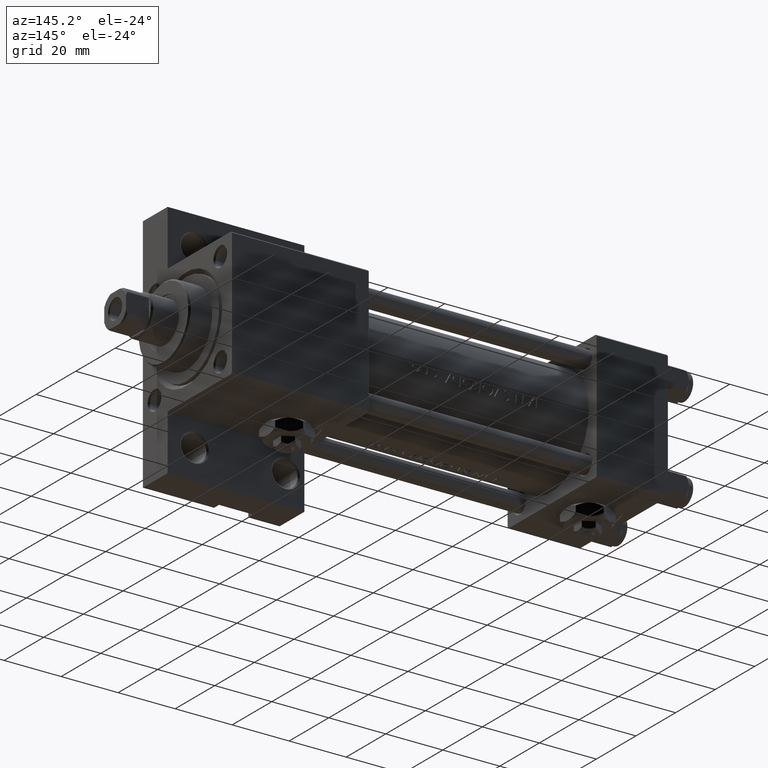
[diagram: clean part render]
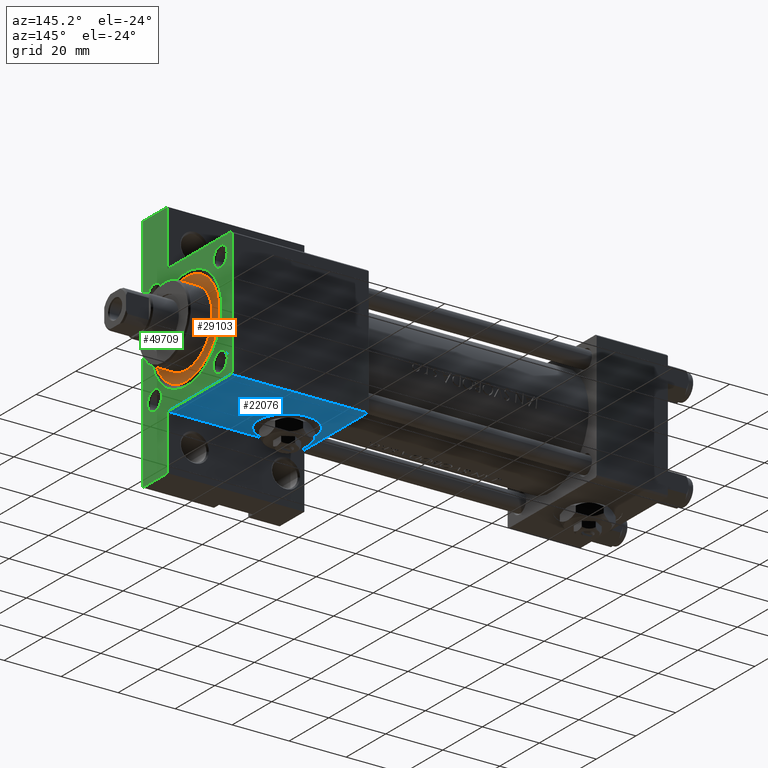
[diagram: same view with three faces highlighted in distinct colors, each labeled with its STEP entity id]
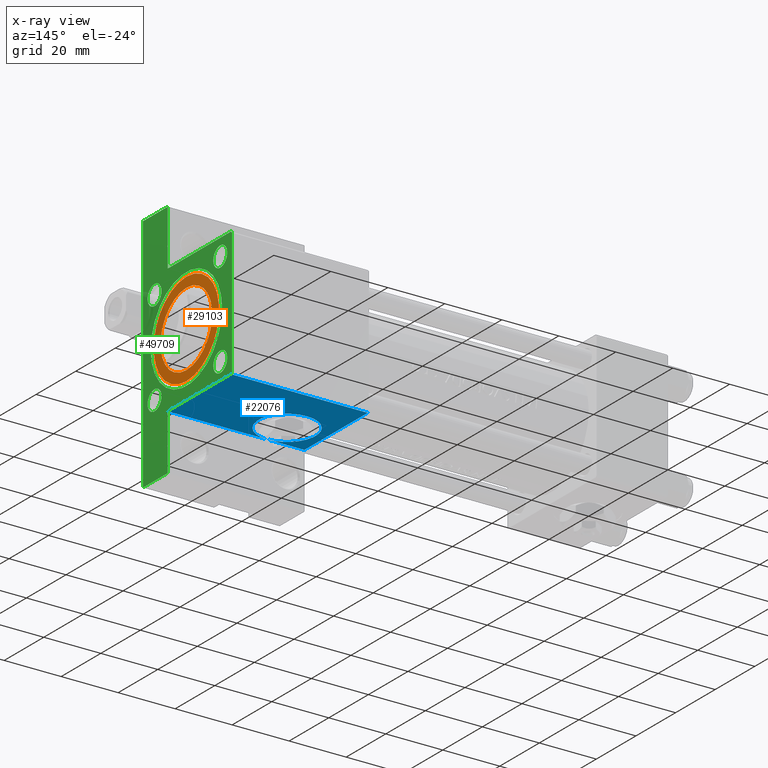
[diagram: x-ray of the same camera — body ghosted, the three highlighted faces saturated]
A machine part, auxiliary view with three faces highlighted in distinct colors.
The next image is the same camera in x-ray (body ghosted, the three faces saturated) — at least one of them is partly hidden behind the body in this view.
Their STEP definitions:

[orange] entity #29103 — the highlighted planar face has unit normal (1, 0, 0).
#1811 = CARTESIAN_POINT ( 'NONE',  ( 0.000000000000000000, 0.000000000000000000, 28.69999999999999929 ) ) ;
#1922 = EDGE_CURVE ( 'NONE', #48333, #40470, #46115, .T. ) ;
#2760 = CARTESIAN_POINT ( 'NONE',  ( 0.000000000000000000, 0.000000000000000000, 28.69999999999999929 ) ) ;
#6560 = DIRECTION ( 'NONE',  ( 0.000000000000000000, 0.000000000000000000, 1.000000000000000000 ) ) ;
#6644 = CIRCLE ( 'NONE', #30756, 13.00000000000000178 ) ;
#7551 = AXIS2_PLACEMENT_3D ( 'NONE', #1811, #6560, #37254 ) ;
#7639 = ORIENTED_EDGE ( 'NONE', *, *, #1922, .T. ) ;
#9574 = FACE_OUTER_BOUND ( 'NONE', #19004, .T. ) ;
#10303 = FACE_BOUND ( 'NONE', #33763, .T. ) ;
#11593 = CARTESIAN_POINT ( 'NONE',  ( 0.000000000000000000, 0.000000000000000000, 28.69999999999999929 ) ) ;
#13199 = DIRECTION ( 'NONE',  ( 0.000000000000000000, 0.000000000000000000, 1.000000000000000000 ) ) ;
#14281 = CARTESIAN_POINT ( 'NONE',  ( 13.00000000000000178, 1.592040838891559293E-15, 28.69999999999999929 ) ) ;
#14694 = CIRCLE ( 'NONE', #32348, 16.50000000000000000 ) ;
#16633 = VERTEX_POINT ( 'NONE', #14281 ) ;
#17826 = PLANE ( 'NONE',  #43364 ) ;
#18078 = DIRECTION ( 'NONE',  ( 1.000000000000000000, 0.000000000000000000, -0.000000000000000000 ) ) ;
#19004 = EDGE_LOOP ( 'NONE', ( #7639, #34308 ) ) ;
#20249 = ORIENTED_EDGE ( 'NONE', *, *, #22564, .F. ) ;
#20943 = DIRECTION ( 'NONE',  ( 0.000000000000000000, 0.000000000000000000, 1.000000000000000000 ) ) ;
#22564 = EDGE_CURVE ( 'NONE', #32671, #16633, #6644, .T. ) ;
#28023 = DIRECTION ( 'NONE',  ( 1.000000000000000000, 0.000000000000000000, 0.000000000000000000 ) ) ;
#28076 = DIRECTION ( 'NONE',  ( 0.000000000000000000, 0.000000000000000000, 1.000000000000000000 ) ) ;
#29103 = ADVANCED_FACE ( 'NONE', ( #10303, #9574 ), #17826, .T. ) ;
#29804 = CIRCLE ( 'NONE', #36248, 13.00000000000000178 ) ;
#30756 = AXIS2_PLACEMENT_3D ( 'NONE', #2760, #20943, #32498 ) ;
#31133 = CARTESIAN_POINT ( 'NONE',  ( 16.50000000000000000, 2.020667218593133100E-15, 28.69999999999999929 ) ) ;
#32252 = EDGE_CURVE ( 'NONE', #16633, #32671, #29804, .T. ) ;
#32348 = AXIS2_PLACEMENT_3D ( 'NONE', #11593, #28076, #36137 ) ;
#32498 = DIRECTION ( 'NONE',  ( 1.000000000000000000, 0.000000000000000000, 0.000000000000000000 ) ) ;
#32671 = VERTEX_POINT ( 'NONE', #45260 ) ;
#33058 = CARTESIAN_POINT ( 'NONE',  ( -16.50000000000000000, 0.000000000000000000, 28.69999999999999929 ) ) ;
#33176 = CARTESIAN_POINT ( 'NONE',  ( 0.000000000000000000, 0.000000000000000000, 28.69999999999999929 ) ) ;
#33763 = EDGE_LOOP ( 'NONE', ( #20249, #37446 ) ) ;
#34308 = ORIENTED_EDGE ( 'NONE', *, *, #39925, .T. ) ;
#35842 = CARTESIAN_POINT ( 'NONE',  ( 0.000000000000000000, 0.000000000000000000, 28.69999999999999929 ) ) ;
#36137 = DIRECTION ( 'NONE',  ( 1.000000000000000000, 0.000000000000000000, 0.000000000000000000 ) ) ;
#36248 = AXIS2_PLACEMENT_3D ( 'NONE', #35842, #13199, #28023 ) ;
#37220 = DIRECTION ( 'NONE',  ( 0.000000000000000000, 0.000000000000000000, 1.000000000000000000 ) ) ;
#37254 = DIRECTION ( 'NONE',  ( 1.000000000000000000, 0.000000000000000000, 0.000000000000000000 ) ) ;
#37446 = ORIENTED_EDGE ( 'NONE', *, *, #32252, .F. ) ;
#39925 = EDGE_CURVE ( 'NONE', #40470, #48333, #14694, .T. ) ;
#40470 = VERTEX_POINT ( 'NONE', #31133 ) ;
#43364 = AXIS2_PLACEMENT_3D ( 'NONE', #33176, #37220, #18078 ) ;
#45260 = CARTESIAN_POINT ( 'NONE',  ( -13.00000000000000178, 0.000000000000000000, 28.69999999999999929 ) ) ;
#46115 = CIRCLE ( 'NONE', #7551, 16.50000000000000000 ) ;
#48333 = VERTEX_POINT ( 'NONE', #33058 ) ;

[blue] entity #22076 — the highlighted planar face has unit normal (0, 0, -1).
#2626 = VECTOR ( 'NONE', #49698, 1000.000000000000000 ) ;
#2941 = DIRECTION ( 'NONE',  ( -0.000000000000000000, 1.000000000000000000, 0.000000000000000000 ) ) ;
#3056 = CIRCLE ( 'NONE', #21496, 9.999999999999994671 ) ;
#4027 = CARTESIAN_POINT ( 'NONE',  ( 153.0000000000000284, 22.50000000000000355, 22.00000000000000355 ) ) ;
#5958 = CARTESIAN_POINT ( 'NONE',  ( 118.0000000000000142, 22.50000000000000355, 9.999999999999994671 ) ) ;
#6108 = AXIS2_PLACEMENT_3D ( 'NONE', #49228, #18281, #10756 ) ;
#7456 = LINE ( 'NONE', #41424, #2626 ) ;
#8136 = CARTESIAN_POINT ( 'NONE',  ( 153.0000000000000284, 22.50000000000000355, 22.50000000000000355 ) ) ;
#8373 = DIRECTION ( 'NONE',  ( 0.000000000000000000, 1.000000000000000000, 0.000000000000000000 ) ) ;
#9372 = LINE ( 'NONE', #24683, #33137 ) ;
#9622 = LINE ( 'NONE', #33227, #38804 ) ;
#9714 = CARTESIAN_POINT ( 'NONE',  ( 153.0000000000000284, 22.50000000000000355, 22.00000000000000355 ) ) ;
#10108 = EDGE_CURVE ( 'NONE', #17993, #45819, #12650, .T. ) ;
#10115 = DIRECTION ( 'NONE',  ( 0.000000000000000000, 0.000000000000000000, -1.000000000000000000 ) ) ;
#10756 = DIRECTION ( 'NONE',  ( 0.000000000000000000, 0.000000000000000000, 1.000000000000000000 ) ) ;
#11285 = VERTEX_POINT ( 'NONE', #26506 ) ;
#11482 = DIRECTION ( 'NONE',  ( 0.000000000000000000, -0.000000000000000000, 1.000000000000000000 ) ) ;
#11872 = EDGE_CURVE ( 'NONE', #23829, #31406, #46030, .T. ) ;
#12650 = CIRCLE ( 'NONE', #6108, 9.999999999999994671 ) ;
#13385 = VECTOR ( 'NONE', #23869, 1000.000000000000000 ) ;
#14175 = ORIENTED_EDGE ( 'NONE', *, *, #14496, .F. ) ;
#14496 = EDGE_CURVE ( 'NONE', #45819, #17993, #3056, .T. ) ;
#17179 = CARTESIAN_POINT ( 'NONE',  ( 105.0000000000000142, 22.50000000000000355, -9.999999999999984013 ) ) ;
#17486 = CARTESIAN_POINT ( 'NONE',  ( 105.0000000000000142, 22.50000000000000355, 22.00000000000000355 ) ) ;
#17993 = VERTEX_POINT ( 'NONE', #5958 ) ;
#18281 = DIRECTION ( 'NONE',  ( 0.000000000000000000, 1.000000000000000000, 0.000000000000000000 ) ) ;
#18655 = EDGE_CURVE ( 'NONE', #23829, #42034, #9622, .T. ) ;
#19310 = EDGE_CURVE ( 'NONE', #31406, #11285, #31010, .T. ) ;
#19436 = DIRECTION ( 'NONE',  ( 0.000000000000000000, 0.000000000000000000, 1.000000000000000000 ) ) ;
#21496 = AXIS2_PLACEMENT_3D ( 'NONE', #23201, #8373, #19436 ) ;
#22076 = ADVANCED_FACE ( 'NONE', ( #49459 ), #37155, .T. ) ;
#22088 = EDGE_CURVE ( 'NONE', #45819, #42034, #7456, .T. ) ;
#23201 = CARTESIAN_POINT ( 'NONE',  ( 118.0000000000000142, 22.50000000000000355, 0.000000000000000000 ) ) ;
#23469 = DIRECTION ( 'NONE',  ( 0.000000000000000000, 0.000000000000000000, -1.000000000000000000 ) ) ;
#23829 = VERTEX_POINT ( 'NONE', #17486 ) ;
#23869 = DIRECTION ( 'NONE',  ( 1.000000000000000000, 0.000000000000000000, 0.000000000000000000 ) ) ;
#24683 = CARTESIAN_POINT ( 'NONE',  ( 105.0000000000000142, 22.50000000000000000, -9.999999999999998224 ) ) ;
#25727 = ORIENTED_EDGE ( 'NONE', *, *, #18655, .F. ) ;
#26364 = ORIENTED_EDGE ( 'NONE', *, *, #11872, .T. ) ;
#26506 = CARTESIAN_POINT ( 'NONE',  ( 152.9999999999999716, 22.49999999999998579, -9.999999999999998224 ) ) ;
#27486 = AXIS2_PLACEMENT_3D ( 'NONE', #44948, #2941, #11482 ) ;
#31010 = LINE ( 'NONE', #8136, #43608 ) ;
#31406 = VERTEX_POINT ( 'NONE', #9714 ) ;
#33137 = VECTOR ( 'NONE', #47828, 1000.000000000000000 ) ;
#33227 = CARTESIAN_POINT ( 'NONE',  ( 105.0000000000000142, 22.50000000000000355, 22.50000000000000355 ) ) ;
#37155 = PLANE ( 'NONE',  #27486 ) ;
#38804 = VECTOR ( 'NONE', #10115, 1000.000000000000000 ) ;
#39717 = EDGE_CURVE ( 'NONE', #11285, #45819, #9372, .T. ) ;
#40725 = ORIENTED_EDGE ( 'NONE', *, *, #19310, .T. ) ;
#41424 = CARTESIAN_POINT ( 'NONE',  ( 105.0000000000000142, 22.50000000000000000, -9.999999999999998224 ) ) ;
#42034 = VERTEX_POINT ( 'NONE', #17179 ) ;
#43608 = VECTOR ( 'NONE', #23469, 1000.000000000000000 ) ;
#44109 = EDGE_LOOP ( 'NONE', ( #25727, #26364, #40725, #47073, #49193, #14175, #46372 ) ) ;
#44948 = CARTESIAN_POINT ( 'NONE',  ( 153.0000000000000284, 22.50000000000000355, 22.50000000000000355 ) ) ;
#45250 = CARTESIAN_POINT ( 'NONE',  ( 118.0000000000000142, 22.49999999999999645, -9.999999999999998224 ) ) ;
#45819 = VERTEX_POINT ( 'NONE', #45250 ) ;
#46030 = LINE ( 'NONE', #4027, #13385 ) ;
#46372 = ORIENTED_EDGE ( 'NONE', *, *, #22088, .T. ) ;
#47073 = ORIENTED_EDGE ( 'NONE', *, *, #39717, .T. ) ;
#47828 = DIRECTION ( 'NONE',  ( -1.000000000000000000, 2.891205793294680792E-16, -0.000000000000000000 ) ) ;
#49193 = ORIENTED_EDGE ( 'NONE', *, *, #10108, .F. ) ;
#49228 = CARTESIAN_POINT ( 'NONE',  ( 118.0000000000000142, 22.50000000000000355, 0.000000000000000000 ) ) ;
#49459 = FACE_OUTER_BOUND ( 'NONE', #44109, .T. ) ;
#49698 = DIRECTION ( 'NONE',  ( -1.000000000000000000, 2.891205793294680792E-16, -0.000000000000000000 ) ) ;

[green] entity #49709 — the highlighted planar face has unit normal (-1, 0, -0).
#350 = ORIENTED_EDGE ( 'NONE', *, *, #26659, .T. ) ;
#390 = CARTESIAN_POINT ( 'NONE',  ( 152.9999999999999716, 41.99999999999999289, -9.999999999999998224 ) ) ;
#463 = AXIS2_PLACEMENT_3D ( 'NONE', #11864, #12108, #42799 ) ;
#888 = VERTEX_POINT ( 'NONE', #13520 ) ;
#1109 = LINE ( 'NONE', #28226, #48582 ) ;
#1223 = ORIENTED_EDGE ( 'NONE', *, *, #31557, .F. ) ;
#2081 = VERTEX_POINT ( 'NONE', #12575 ) ;
#2228 = DIRECTION ( 'NONE',  ( -1.000000000000000000, 0.000000000000000000, -0.000000000000000000 ) ) ;
#2330 = EDGE_CURVE ( 'NONE', #43205, #34498, #31361, .T. ) ;
#3128 = CARTESIAN_POINT ( 'NONE',  ( 153.0000000000000284, -16.60000000000000497, -13.10000000000002807 ) ) ;
#3586 = EDGE_CURVE ( 'NONE', #34498, #10292, #10910, .T. ) ;
#3650 = LINE ( 'NONE', #390, #37006 ) ;
#4223 = DIRECTION ( 'NONE',  ( -0.000000000000000000, -0.7071067811865474617, -0.7071067811865474617 ) ) ;
#4250 = AXIS2_PLACEMENT_3D ( 'NONE', #21325, #2228, #9281 ) ;
#4265 = CARTESIAN_POINT ( 'NONE',  ( 153.0000000000000284, 0.000000000000000000, -0.4999999999999967804 ) ) ;
#4329 = EDGE_CURVE ( 'NONE', #22292, #36195, #28528, .T. ) ;
#4470 = CARTESIAN_POINT ( 'NONE',  ( 153.0000000000000284, -22.49999999999999645, 21.99999999999996447 ) ) ;
#4546 = EDGE_CURVE ( 'NONE', #13676, #47807, #22119, .T. ) ;
#4584 = AXIS2_PLACEMENT_3D ( 'NONE', #4265, #23372, #6863 ) ;
#5081 = AXIS2_PLACEMENT_3D ( 'NONE', #32724, #48073, #13617 ) ;
#5406 = LINE ( 'NONE', #20735, #24405 ) ;
#5602 = EDGE_LOOP ( 'NONE', ( #23324, #17927 ) ) ;
#5853 = ORIENTED_EDGE ( 'NONE', *, *, #43893, .T. ) ;
#6341 = FACE_BOUND ( 'NONE', #49254, .T. ) ;
#6693 = EDGE_CURVE ( 'NONE', #20789, #22287, #17060, .T. ) ;
#6863 = DIRECTION ( 'NONE',  ( 0.000000000000000000, 0.000000000000000000, 1.000000000000000000 ) ) ;
#7992 = EDGE_CURVE ( 'NONE', #22128, #10944, #43934, .T. ) ;
#8134 = ORIENTED_EDGE ( 'NONE', *, *, #40456, .T. ) ;
#8136 = CARTESIAN_POINT ( 'NONE',  ( 153.0000000000000284, 22.50000000000000355, 22.50000000000000355 ) ) ;
#9086 = EDGE_LOOP ( 'NONE', ( #22024, #8134, #5853, #37899, #45909, #16475, #33978, #20144, #1223, #16945 ) ) ;
#9281 = DIRECTION ( 'NONE',  ( 0.000000000000000000, 0.000000000000000000, 1.000000000000000000 ) ) ;
#9476 = DIRECTION ( 'NONE',  ( -1.000000000000000000, 0.000000000000000000, -0.000000000000000000 ) ) ;
#9714 = CARTESIAN_POINT ( 'NONE',  ( 153.0000000000000284, 22.50000000000000355, 22.00000000000000355 ) ) ;
#10107 = EDGE_CURVE ( 'NONE', #30387, #888, #34318, .T. ) ;
#10126 = FACE_BOUND ( 'NONE', #26591, .T. ) ;
#10188 = CARTESIAN_POINT ( 'NONE',  ( 152.9999999999999716, -42.00000000000000711, -22.50000000000000000 ) ) ;
#10292 = VERTEX_POINT ( 'NONE', #23794 ) ;
#10612 = CARTESIAN_POINT ( 'NONE',  ( 153.0000000000000284, 0.000000000000000000, 0.000000000000000000 ) ) ;
#10910 = LINE ( 'NONE', #14926, #20469 ) ;
#10944 = VERTEX_POINT ( 'NONE', #28428 ) ;
#11285 = VERTEX_POINT ( 'NONE', #26506 ) ;
#11448 = DIRECTION ( 'NONE',  ( 0.000000000000000000, 0.000000000000000000, -1.000000000000000000 ) ) ;
#11575 = VECTOR ( 'NONE', #4223, 1000.000000000000114 ) ;
#11864 = CARTESIAN_POINT ( 'NONE',  ( 153.0000000000000284, 16.59999999999999787, -16.60000000000000497 ) ) ;
#12108 = DIRECTION ( 'NONE',  ( -1.000000000000000000, 0.000000000000000000, -0.000000000000000000 ) ) ;
#12373 = VECTOR ( 'NONE', #37548, 1000.000000000000000 ) ;
#12575 = CARTESIAN_POINT ( 'NONE',  ( 153.0000000000000284, 16.59999999999999787, 20.10000000000001918 ) ) ;
#13006 = AXIS2_PLACEMENT_3D ( 'NONE', #17560, #41210, #29615 ) ;
#13198 = DIRECTION ( 'NONE',  ( 0.000000000000000000, -1.000000000000000000, 0.000000000000000000 ) ) ;
#13520 = CARTESIAN_POINT ( 'NONE',  ( 153.0000000000000284, -16.59999999999999787, 20.09999999999997300 ) ) ;
#13617 = DIRECTION ( 'NONE',  ( 0.000000000000000000, 0.000000000000000000, 1.000000000000000000 ) ) ;
#13676 = VERTEX_POINT ( 'NONE', #22207 ) ;
#13758 = ORIENTED_EDGE ( 'NONE', *, *, #4329, .T. ) ;
#14131 = DIRECTION ( 'NONE',  ( -1.000000000000000000, 0.000000000000000000, -0.000000000000000000 ) ) ;
#14379 = FACE_BOUND ( 'NONE', #5602, .T. ) ;
#14896 = LINE ( 'NONE', #45088, #12373 ) ;
#14926 = CARTESIAN_POINT ( 'NONE',  ( 153.0000000000000284, -22.49999999999999645, 22.49999999999999289 ) ) ;
#15142 = DIRECTION ( 'NONE',  ( 0.000000000000000000, 0.000000000000000000, 1.000000000000000000 ) ) ;
#15713 = AXIS2_PLACEMENT_3D ( 'NONE', #29704, #18899, #15142 ) ;
#15780 = CARTESIAN_POINT ( 'NONE',  ( 152.9999999999999716, -42.00000000000000711, -9.999999999999998224 ) ) ;
#15885 = CARTESIAN_POINT ( 'NONE',  ( 152.9999999999999716, 41.99999999999999289, -9.999999999999998224 ) ) ;
#16225 = DIRECTION ( 'NONE',  ( 0.000000000000000000, 0.000000000000000000, 1.000000000000000000 ) ) ;
#16373 = VERTEX_POINT ( 'NONE', #29665 ) ;
#16475 = ORIENTED_EDGE ( 'NONE', *, *, #31268, .T. ) ;
#16945 = ORIENTED_EDGE ( 'NONE', *, *, #46063, .T. ) ;
#16963 = DIRECTION ( 'NONE',  ( -1.000000000000000000, 0.000000000000000000, -0.000000000000000000 ) ) ;
#17060 = LINE ( 'NONE', #47746, #33411 ) ;
#17323 = CARTESIAN_POINT ( 'NONE',  ( 153.0000000000000284, -16.60000000000000497, -20.09999999999998010 ) ) ;
#17560 = CARTESIAN_POINT ( 'NONE',  ( 153.0000000000000284, 0.000000000000000000, -0.4999999999999967804 ) ) ;
#17643 = VERTEX_POINT ( 'NONE', #41403 ) ;
#17927 = ORIENTED_EDGE ( 'NONE', *, *, #24824, .T. ) ;
#18899 = DIRECTION ( 'NONE',  ( -1.000000000000000000, 0.000000000000000000, -0.000000000000000000 ) ) ;
#19310 = EDGE_CURVE ( 'NONE', #31406, #11285, #31010, .T. ) ;
#19536 = LINE ( 'NONE', #15780, #25724 ) ;
#19617 = VERTEX_POINT ( 'NONE', #15885 ) ;
#20144 = ORIENTED_EDGE ( 'NONE', *, *, #42116, .F. ) ;
#20469 = VECTOR ( 'NONE', #41599, 1000.000000000000000 ) ;
#20686 = CARTESIAN_POINT ( 'NONE',  ( 153.0000000000000284, -21.99999999999995381, 22.49999999999999289 ) ) ;
#20735 = CARTESIAN_POINT ( 'NONE',  ( 152.9999999999999716, 41.99999999999999289, -9.999999999999998224 ) ) ;
#20789 = VERTEX_POINT ( 'NONE', #23883 ) ;
#21106 = EDGE_LOOP ( 'NONE', ( #23903, #13758 ) ) ;
#21325 = CARTESIAN_POINT ( 'NONE',  ( 153.0000000000000284, 16.59999999999999787, 16.60000000000000497 ) ) ;
#21667 = FACE_BOUND ( 'NONE', #21106, .T. ) ;
#22024 = ORIENTED_EDGE ( 'NONE', *, *, #19310, .F. ) ;
#22119 = CIRCLE ( 'NONE', #463, 3.499999999999975131 ) ;
#22128 = VERTEX_POINT ( 'NONE', #27280 ) ;
#22207 = CARTESIAN_POINT ( 'NONE',  ( 153.0000000000000284, 16.59999999999999787, -20.09999999999998010 ) ) ;
#22287 = VERTEX_POINT ( 'NONE', #10188 ) ;
#22292 = VERTEX_POINT ( 'NONE', #3128 ) ;
#23061 = CARTESIAN_POINT ( 'NONE',  ( 153.0000000000000284, -16.59999999999999787, 13.10000000000002096 ) ) ;
#23324 = ORIENTED_EDGE ( 'NONE', *, *, #4546, .T. ) ;
#23372 = DIRECTION ( 'NONE',  ( -1.000000000000000000, 0.000000000000000000, -0.000000000000000000 ) ) ;
#23390 = EDGE_CURVE ( 'NONE', #888, #30387, #26726, .T. ) ;
#23469 = DIRECTION ( 'NONE',  ( 0.000000000000000000, 0.000000000000000000, -1.000000000000000000 ) ) ;
#23511 = CARTESIAN_POINT ( 'NONE',  ( 153.0000000000000284, -16.60000000000000497, -16.60000000000000497 ) ) ;
#23563 = EDGE_CURVE ( 'NONE', #16373, #2081, #25896, .T. ) ;
#23573 = ORIENTED_EDGE ( 'NONE', *, *, #23563, .T. ) ;
#23794 = CARTESIAN_POINT ( 'NONE',  ( 153.0000000000000284, -22.49999999999999645, -9.999999999999980460 ) ) ;
#23883 = CARTESIAN_POINT ( 'NONE',  ( 152.9999999999999716, -42.00000000000000711, -9.999999999999998224 ) ) ;
#23903 = ORIENTED_EDGE ( 'NONE', *, *, #39314, .T. ) ;
#24405 = VECTOR ( 'NONE', #13198, 1000.000000000000000 ) ;
#24490 = DIRECTION ( 'NONE',  ( -1.000000000000000000, 0.000000000000000000, -0.000000000000000000 ) ) ;
#24493 = CARTESIAN_POINT ( 'NONE',  ( 153.0000000000000284, 16.59999999999999787, 16.60000000000000497 ) ) ;
#24693 = CARTESIAN_POINT ( 'NONE',  ( 153.0000000000000284, 22.00000000000000355, 22.50000000000000355 ) ) ;
#24784 = DIRECTION ( 'NONE',  ( 0.000000000000000000, 0.000000000000000000, 1.000000000000000000 ) ) ;
#24824 = EDGE_CURVE ( 'NONE', #47807, #13676, #43423, .T. ) ;
#25115 = VECTOR ( 'NONE', #40061, 1000.000000000000114 ) ;
#25724 = VECTOR ( 'NONE', #33881, 1000.000000000000000 ) ;
#25896 = CIRCLE ( 'NONE', #4250, 3.500000000000016875 ) ;
#26386 = CIRCLE ( 'NONE', #41680, 3.500000000000016875 ) ;
#26506 = CARTESIAN_POINT ( 'NONE',  ( 152.9999999999999716, 22.49999999999998579, -9.999999999999998224 ) ) ;
#26591 = EDGE_LOOP ( 'NONE', ( #23573, #350 ) ) ;
#26659 = EDGE_CURVE ( 'NONE', #2081, #16373, #26386, .T. ) ;
#26726 = CIRCLE ( 'NONE', #5081, 3.499999999999975131 ) ;
#26971 = AXIS2_PLACEMENT_3D ( 'NONE', #37918, #38166, #45467 ) ;
#27280 = CARTESIAN_POINT ( 'NONE',  ( 153.0000000000000284, 0.000000000000000000, -18.50000000000000000 ) ) ;
#28128 = AXIS2_PLACEMENT_3D ( 'NONE', #32587, #9476, #24784 ) ;
#28226 = CARTESIAN_POINT ( 'NONE',  ( 153.0000000000000284, 22.50000000000000355, 22.50000000000000355 ) ) ;
#28428 = CARTESIAN_POINT ( 'NONE',  ( 153.0000000000000284, 2.204364238465235822E-15, 17.50000000000000355 ) ) ;
#28528 = CIRCLE ( 'NONE', #15713, 3.499999999999975131 ) ;
#28928 = EDGE_LOOP ( 'NONE', ( #42401, #36244 ) ) ;
#29463 = DIRECTION ( 'NONE',  ( -0.000000000000000000, 0.000000000000000000, 1.000000000000000000 ) ) ;
#29615 = DIRECTION ( 'NONE',  ( 0.000000000000000000, 0.000000000000000000, 1.000000000000000000 ) ) ;
#29665 = CARTESIAN_POINT ( 'NONE',  ( 153.0000000000000284, 16.59999999999999787, 13.09999999999998721 ) ) ;
#29702 = FACE_OUTER_BOUND ( 'NONE', #9086, .T. ) ;
#29704 = CARTESIAN_POINT ( 'NONE',  ( 153.0000000000000284, -16.60000000000000497, -16.60000000000000497 ) ) ;
#30155 = AXIS2_PLACEMENT_3D ( 'NONE', #10612, #14131, #29463 ) ;
#30387 = VERTEX_POINT ( 'NONE', #23061 ) ;
#31010 = LINE ( 'NONE', #8136, #43608 ) ;
#31268 = EDGE_CURVE ( 'NONE', #10292, #20789, #19536, .T. ) ;
#31361 = LINE ( 'NONE', #4470, #11575 ) ;
#31406 = VERTEX_POINT ( 'NONE', #9714 ) ;
#31557 = EDGE_CURVE ( 'NONE', #19617, #17643, #3650, .T. ) ;
#31966 = ORIENTED_EDGE ( 'NONE', *, *, #10107, .T. ) ;
#32296 = DIRECTION ( 'NONE',  ( 0.000000000000000000, 0.000000000000000000, 1.000000000000000000 ) ) ;
#32311 = CIRCLE ( 'NONE', #38768, 3.499999999999975131 ) ;
#32587 = CARTESIAN_POINT ( 'NONE',  ( 153.0000000000000284, 16.59999999999999787, -16.60000000000000497 ) ) ;
#32724 = CARTESIAN_POINT ( 'NONE',  ( 153.0000000000000284, -16.59999999999999787, 16.59999999999999787 ) ) ;
#33411 = VECTOR ( 'NONE', #41458, 1000.000000000000000 ) ;
#33881 = DIRECTION ( 'NONE',  ( -0.000000000000000000, -1.000000000000000000, -0.000000000000000000 ) ) ;
#33978 = ORIENTED_EDGE ( 'NONE', *, *, #6693, .T. ) ;
#34318 = CIRCLE ( 'NONE', #26971, 3.499999999999975131 ) ;
#34498 = VERTEX_POINT ( 'NONE', #45163 ) ;
#34685 = VERTEX_POINT ( 'NONE', #35325 ) ;
#35325 = CARTESIAN_POINT ( 'NONE',  ( 153.0000000000000284, 22.00000000000000355, 22.50000000000000355 ) ) ;
#36195 = VERTEX_POINT ( 'NONE', #17323 ) ;
#36244 = ORIENTED_EDGE ( 'NONE', *, *, #37767, .T. ) ;
#37006 = VECTOR ( 'NONE', #11448, 1000.000000000000000 ) ;
#37548 = DIRECTION ( 'NONE',  ( 0.000000000000000000, -1.000000000000000000, -7.709882115452476934E-17 ) ) ;
#37767 = EDGE_CURVE ( 'NONE', #10944, #22128, #38733, .T. ) ;
#37899 = ORIENTED_EDGE ( 'NONE', *, *, #2330, .T. ) ;
#37918 = CARTESIAN_POINT ( 'NONE',  ( 153.0000000000000284, -16.59999999999999787, 16.59999999999999787 ) ) ;
#38166 = DIRECTION ( 'NONE',  ( -1.000000000000000000, 0.000000000000000000, -0.000000000000000000 ) ) ;
#38733 = CIRCLE ( 'NONE', #13006, 18.00000000000000355 ) ;
#38768 = AXIS2_PLACEMENT_3D ( 'NONE', #23511, #24490, #16225 ) ;
#39314 = EDGE_CURVE ( 'NONE', #36195, #22292, #32311, .T. ) ;
#40061 = DIRECTION ( 'NONE',  ( 0.000000000000000000, -0.7071067811865474617, 0.7071067811865474617 ) ) ;
#40456 = EDGE_CURVE ( 'NONE', #31406, #34685, #43837, .T. ) ;
#41210 = DIRECTION ( 'NONE',  ( -1.000000000000000000, 0.000000000000000000, -0.000000000000000000 ) ) ;
#41403 = CARTESIAN_POINT ( 'NONE',  ( 152.9999999999999716, 41.99999999999999289, -22.50000000000000000 ) ) ;
#41458 = DIRECTION ( 'NONE',  ( 0.000000000000000000, 0.000000000000000000, -1.000000000000000000 ) ) ;
#41599 = DIRECTION ( 'NONE',  ( 0.000000000000000000, 0.000000000000000000, -1.000000000000000000 ) ) ;
#41680 = AXIS2_PLACEMENT_3D ( 'NONE', #24493, #16963, #32296 ) ;
#42116 = EDGE_CURVE ( 'NONE', #17643, #22287, #14896, .T. ) ;
#42401 = ORIENTED_EDGE ( 'NONE', *, *, #7992, .T. ) ;
#42491 = CARTESIAN_POINT ( 'NONE',  ( 153.0000000000000284, 16.59999999999999787, -13.10000000000002807 ) ) ;
#42799 = DIRECTION ( 'NONE',  ( 0.000000000000000000, 0.000000000000000000, 1.000000000000000000 ) ) ;
#43205 = VERTEX_POINT ( 'NONE', #20686 ) ;
#43423 = CIRCLE ( 'NONE', #28128, 3.499999999999975131 ) ;
#43592 = DIRECTION ( 'NONE',  ( 0.000000000000000000, -1.000000000000000000, -2.312964634635742957E-16 ) ) ;
#43608 = VECTOR ( 'NONE', #23469, 1000.000000000000000 ) ;
#43837 = LINE ( 'NONE', #24693, #25115 ) ;
#43893 = EDGE_CURVE ( 'NONE', #34685, #43205, #1109, .T. ) ;
#43934 = CIRCLE ( 'NONE', #4584, 18.00000000000000355 ) ;
#45069 = PLANE ( 'NONE',  #30155 ) ;
#45088 = CARTESIAN_POINT ( 'NONE',  ( 153.0000000000000284, 22.50000000000000355, -22.49999999999999645 ) ) ;
#45163 = CARTESIAN_POINT ( 'NONE',  ( 153.0000000000000284, -22.49999999999999645, 21.99999999999996447 ) ) ;
#45467 = DIRECTION ( 'NONE',  ( 0.000000000000000000, 0.000000000000000000, 1.000000000000000000 ) ) ;
#45909 = ORIENTED_EDGE ( 'NONE', *, *, #3586, .T. ) ;
#46063 = EDGE_CURVE ( 'NONE', #19617, #11285, #5406, .T. ) ;
#47746 = CARTESIAN_POINT ( 'NONE',  ( 152.9999999999999716, -42.00000000000000711, -9.999999999999998224 ) ) ;
#47807 = VERTEX_POINT ( 'NONE', #42491 ) ;
#48073 = DIRECTION ( 'NONE',  ( -1.000000000000000000, 0.000000000000000000, -0.000000000000000000 ) ) ;
#48582 = VECTOR ( 'NONE', #43592, 1000.000000000000000 ) ;
#48592 = FACE_BOUND ( 'NONE', #28928, .T. ) ;
#49254 = EDGE_LOOP ( 'NONE', ( #31966, #49747 ) ) ;
#49709 = ADVANCED_FACE ( 'NONE', ( #10126, #6341, #21667, #14379, #48592, #29702 ), #45069, .F. ) ;
#49747 = ORIENTED_EDGE ( 'NONE', *, *, #23390, .T. ) ;